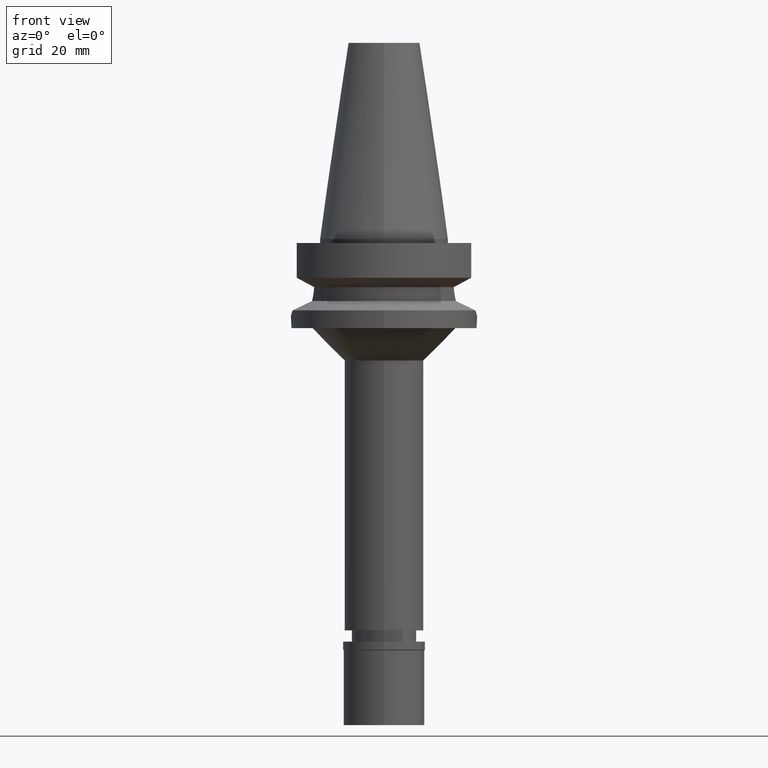
[diagram: clean part render]
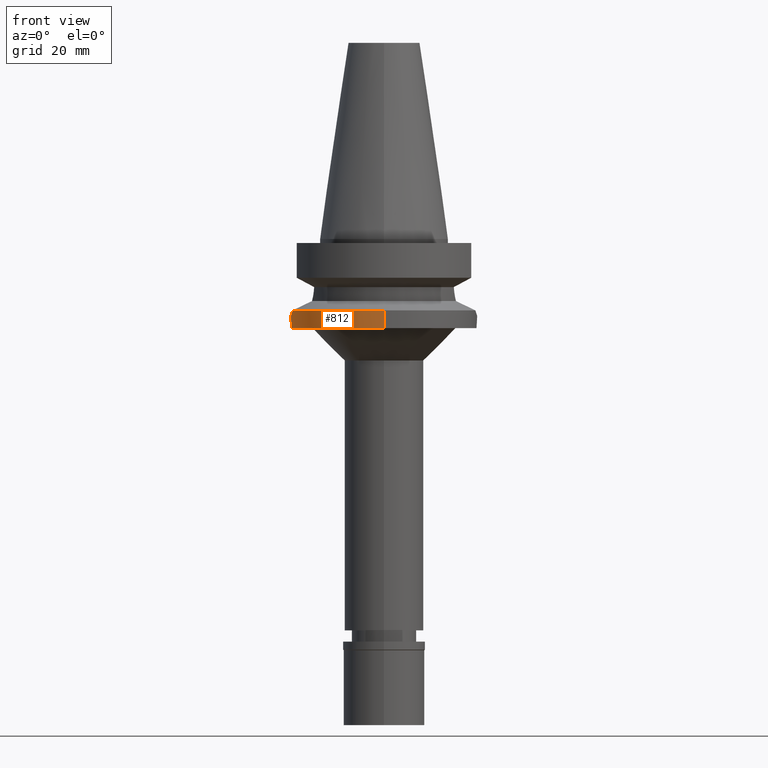
[diagram: same view with one face highlighted and labeled with its STEP entity id]
A machine part, front view. The second image highlights one B-rep face of the part: STEP entity #812.
In plain terms, the highlighted cylindrical surface (partial cylindrical patch) has radius 23 mm, axis along (0, 0, -1).
Its self-contained STEP definition (entity closure, byte-faithful):
#29 = ORIENTED_EDGE ( 'NONE', *, *, #2567, .F. ) ;
#90 = CARTESIAN_POINT ( 'NONE',  ( -22.87447603891271797, 2.400732468497155825, -18.63371578562736630 ) ) ;
#109 = CARTESIAN_POINT ( 'NONE',  ( -22.88100455297495728, 2.337826800700942620, -18.65309724256172430 ) ) ;
#132 = DIRECTION ( 'NONE',  ( 0.0000000000000000000, 0.0000000000000000000, -1.000000000000000000 ) ) ;
#151 = CIRCLE ( 'NONE', #2539, 23.00000000000001066 ) ;
#184 = CARTESIAN_POINT ( 'NONE',  ( -22.91226962265058731, -2.011716082823624241, -18.74571245468625946 ) ) ;
#194 = CARTESIAN_POINT ( 'NONE',  ( 0.0000000000000000000, 23.00000000000000000, -17.63279163029000074 ) ) ;
#197 = CARTESIAN_POINT ( 'NONE',  ( -22.69587574792502949, 3.743258870315922415, -18.08808037463894181 ) ) ;
#255 = AXIS2_PLACEMENT_3D ( 'NONE', #3085, #2397, #1923 ) ;
#322 = EDGE_CURVE ( 'NONE', #2094, #1185, #1254, .T. ) ;
#327 = AXIS2_PLACEMENT_3D ( 'NONE', #1013, #2963, #797 ) ;
#352 = LINE ( 'NONE', #1544, #1826 ) ;
#357 = VECTOR ( 'NONE', #967, 1000.000000000000000 ) ;
#403 = CARTESIAN_POINT ( 'NONE',  ( -22.94680410380220081, -1.574277727998520726, -18.84708101575871098 ) ) ;
#421 = CARTESIAN_POINT ( 'NONE',  ( -22.55786346208000026, -4.488072640470000430, -17.63279163029000074 ) ) ;
#434 = CARTESIAN_POINT ( 'NONE',  ( -22.88200297614783807, -2.327882963302012165, -18.65609789436970800 ) ) ;
#538 = ORIENTED_EDGE ( 'NONE', *, *, #695, .T. ) ;
#590 = CARTESIAN_POINT ( 'NONE',  ( -22.83519341247133028, 2.749092039223115069, -18.51663641927173387 ) ) ;
#596 = CARTESIAN_POINT ( 'NONE',  ( 0.0000000000000000000, 1.022848384030000006E-14, -17.63279163029000074 ) ) ;
#623 = EDGE_LOOP ( 'NONE', ( #3092, #538, #1600, #29, #1125, #1475 ) ) ;
#636 = CARTESIAN_POINT ( 'NONE',  ( 0.0000000000000000000, -23.00000000000000000, -22.00000000000000000 ) ) ;
#652 = CARTESIAN_POINT ( 'NONE',  ( -22.85091934691977755, 2.617082567691643824, -18.56367993365965674 ) ) ;
#669 = CARTESIAN_POINT ( 'NONE',  ( -22.77723652053244052, 3.195801863491573247, -18.34119544123648637 ) ) ;
#682 = CARTESIAN_POINT ( 'NONE',  ( -22.63179148095282045, 4.116497069115270691, -17.88233676769946712 ) ) ;
#695 = EDGE_CURVE ( 'NONE', #2038, #1792, #352, .T. ) ;
#797 = DIRECTION ( 'NONE',  ( 0.0000000000000000000, -1.000000000000000000, 0.0000000000000000000 ) ) ;
#812 = ADVANCED_FACE ( 'NONE', ( #2678 ), #1974, .T. ) ;
#833 = DIRECTION ( 'NONE',  ( 0.0000000000000000000, -2.603192430893000129E-14, -1.000000000000000000 ) ) ;
#967 = DIRECTION ( 'NONE',  ( 0.0000000000000000000, 2.277793377031000010E-14, -1.000000000000000000 ) ) ;
#1013 = CARTESIAN_POINT ( 'NONE',  ( 0.0000000000000000000, 1.915592523225999865E-14, 56.41999999999999460 ) ) ;
#1036 = CARTESIAN_POINT ( 'NONE',  ( -22.88460193397135711, -2.302218780909585760, -18.66381384199890192 ) ) ;
#1055 = CARTESIAN_POINT ( 'NONE',  ( -22.95203500221163750, 1.533417762168523657, -18.86248028531576537 ) ) ;
#1125 = ORIENTED_EDGE ( 'NONE', *, *, #2997, .T. ) ;
#1131 = CARTESIAN_POINT ( 'NONE',  ( -22.87894897394497207, 2.357810483592017281, -18.64699515285408182 ) ) ;
#1183 = CARTESIAN_POINT ( 'NONE',  ( 0.0000000000000000000, 23.00000000000000000, -22.00000000000000000 ) ) ;
#1185 = VERTEX_POINT ( 'NONE', #2400 ) ;
#1207 = LINE ( 'NONE', #1496, #357 ) ;
#1254 = B_SPLINE_CURVE_WITH_KNOTS ( 'NONE', 3,
 ( #2794, #682, #197, #669, #1858, #590, #652, #1295, #90, #1131, #109, #2552, #1055, #1377, #2975, #1629, #2107, #1550, #403, #2079, #184, #1538, #2569, #1036, #434, #2313, #1391, #421 ),
 .UNSPECIFIED., .F., .F.,
 ( 4, 2, 2, 1, 1, 2, 2, 2, 2, 2, 2, 1, 1, 2, 2, 4 ),
 ( 0.0000000000000000000, 0.1249999999999979738, 0.1874999999999968081, 0.2187499999999963363, 0.2343749999999960032, 0.2421874999999959199, 0.2499999999999958089, 0.3749999999999983347, 0.5000000000000009992, 0.6250000000000036637, 0.6875000000000049960, 0.7187500000000054401, 0.7343750000000058842, 0.7421875000000061062, 0.7500000000000062172, 1.000000000000000000 ),
 .UNSPECIFIED. ) ;
#1273 = DIRECTION ( 'NONE',  ( 0.0000000000000000000, 0.0000000000000000000, -1.000000000000000000 ) ) ;
#1295 = CARTESIAN_POINT ( 'NONE',  ( -22.86765127989676927, 2.465286759295709285, -18.61344843004436456 ) ) ;
#1377 = CARTESIAN_POINT ( 'NONE',  ( -22.99087812972787148, 0.7509358659017782989, -18.97463766310646349 ) ) ;
#1391 = CARTESIAN_POINT ( 'NONE',  ( -22.70335847097681636, -3.756788455069719923, -18.12391221678601028 ) ) ;
#1475 = ORIENTED_EDGE ( 'NONE', *, *, #322, .F. ) ;
#1493 = VERTEX_POINT ( 'NONE', #2954 ) ;
#1496 = CARTESIAN_POINT ( 'NONE',  ( 0.0000000000000000000, -23.00000000000000000, -17.63279163029000074 ) ) ;
#1511 = DIRECTION ( 'NONE',  ( 0.0000000000000000000, -1.000000000000000000, 0.0000000000000000000 ) ) ;
#1538 = CARTESIAN_POINT ( 'NONE',  ( -22.89651079836464831, -2.181302522763574281, -18.69911957581811990 ) ) ;
#1544 = CARTESIAN_POINT ( 'NONE',  ( 0.0000000000000000000, 23.00000000000000000, -17.63279163029000074 ) ) ;
#1550 = CARTESIAN_POINT ( 'NONE',  ( -22.95928661035946305, -1.379458635041592496, -18.88336584788529393 ) ) ;
#1600 = ORIENTED_EDGE ( 'NONE', *, *, #1887, .T. ) ;
#1622 = VERTEX_POINT ( 'NONE', #636 ) ;
#1629 = CARTESIAN_POINT ( 'NONE',  ( -22.99958882978206631, -0.4075540546194110214, -18.99879189969537663 ) ) ;
#1683 = EDGE_CURVE ( 'NONE', #2094, #2038, #151, .T. ) ;
#1708 = CARTESIAN_POINT ( 'NONE',  ( 0.0000000000000000000, 1.022848384030000006E-14, -17.63279163029000074 ) ) ;
#1792 = VERTEX_POINT ( 'NONE', #1183 ) ;
#1826 = VECTOR ( 'NONE', #833, 1000.000000000000000 ) ;
#1858 = CARTESIAN_POINT ( 'NONE',  ( -22.80189584009308845, 3.015333280944815897, -18.41634048052348049 ) ) ;
#1887 = EDGE_CURVE ( 'NONE', #1792, #1622, #2301, .T. ) ;
#1923 = DIRECTION ( 'NONE',  ( 0.0000000000000000000, 1.000000000000000000, 0.0000000000000000000 ) ) ;
#1974 = CYLINDRICAL_SURFACE ( 'NONE', #327, 23.00000000000000000 ) ;
#2038 = VERTEX_POINT ( 'NONE', #194 ) ;
#2079 = CARTESIAN_POINT ( 'NONE',  ( -22.92439529173900326, -1.865989930423651577, -18.78138023040254367 ) ) ;
#2094 = VERTEX_POINT ( 'NONE', #2168 ) ;
#2107 = CARTESIAN_POINT ( 'NONE',  ( -22.98936402557668757, -0.7957186364787323107, -18.97023260637087461 ) ) ;
#2168 = CARTESIAN_POINT ( 'NONE',  ( -22.55786346208000026, 4.488072640470000430, -17.63279163029000074 ) ) ;
#2301 = CIRCLE ( 'NONE', #255, 23.00000000000000000 ) ;
#2313 = CARTESIAN_POINT ( 'NONE',  ( -22.81068458790607423, -3.022180108728624859, -18.44429037294511531 ) ) ;
#2397 = DIRECTION ( 'NONE',  ( 0.0000000000000000000, 0.0000000000000000000, 1.000000000000000000 ) ) ;
#2400 = CARTESIAN_POINT ( 'NONE',  ( -22.55786346208000026, -4.488072640470000430, -17.63279163029000074 ) ) ;
#2539 = AXIS2_PLACEMENT_3D ( 'NONE', #596, #132, #2543 ) ;
#2543 = DIRECTION ( 'NONE',  ( -0.9807766722643714852, 0.1951335930638943839, 0.0000000000000000000 ) ) ;
#2552 = CARTESIAN_POINT ( 'NONE',  ( -22.92270192677813512, 1.925490213012192697, -18.77682277297638080 ) ) ;
#2567 = EDGE_CURVE ( 'NONE', #1493, #1622, #1207, .T. ) ;
#2569 = CARTESIAN_POINT ( 'NONE',  ( -22.88941154288151125, -2.253868887342905136, -18.67807934372146761 ) ) ;
#2678 = FACE_OUTER_BOUND ( 'NONE', #623, .T. ) ;
#2745 = AXIS2_PLACEMENT_3D ( 'NONE', #1708, #1273, #1511 ) ;
#2794 = CARTESIAN_POINT ( 'NONE',  ( -22.55786346208000026, 4.488072640470000430, -17.63279163029000074 ) ) ;
#2949 = CIRCLE ( 'NONE', #2745, 23.00000000000000000 ) ;
#2954 = CARTESIAN_POINT ( 'NONE',  ( 0.0000000000000000000, -23.00000000000000000, -17.63279163029000074 ) ) ;
#2963 = DIRECTION ( 'NONE',  ( 0.0000000000000000000, 0.0000000000000000000, -1.000000000000000000 ) ) ;
#2975 = CARTESIAN_POINT ( 'NONE',  ( -23.00038482631390835, 0.3583440638652073962, -19.00113289443984499 ) ) ;
#2997 = EDGE_CURVE ( 'NONE', #1493, #1185, #2949, .T. ) ;
#3085 = CARTESIAN_POINT ( 'NONE',  ( 0.0000000000000000000, 1.915592523225999865E-14, -22.00000000000000000 ) ) ;
#3092 = ORIENTED_EDGE ( 'NONE', *, *, #1683, .T. ) ;